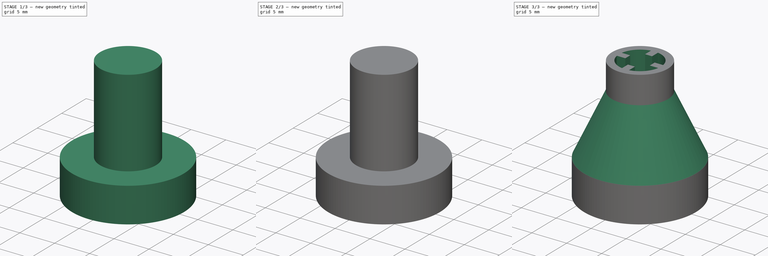
[diagram: build sequence overview — one tinted view per stage of 3, left to right]
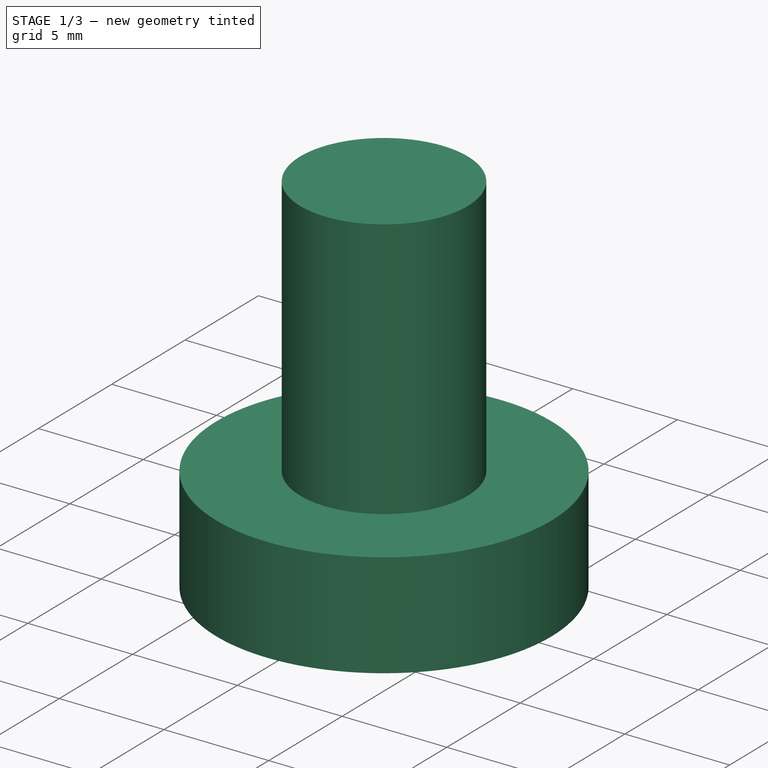
[diagram: stage 1 of 3 — iso view after this stage's code; geometry added in this stage tinted green]
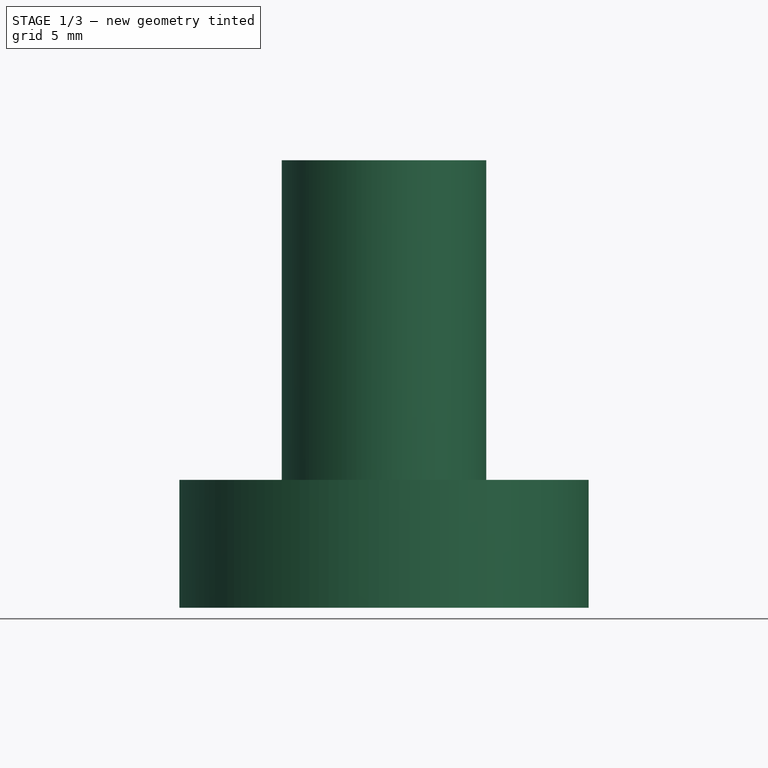
[diagram: stage 1 of 3 — front view after this stage's code; geometry added in this stage tinted green]
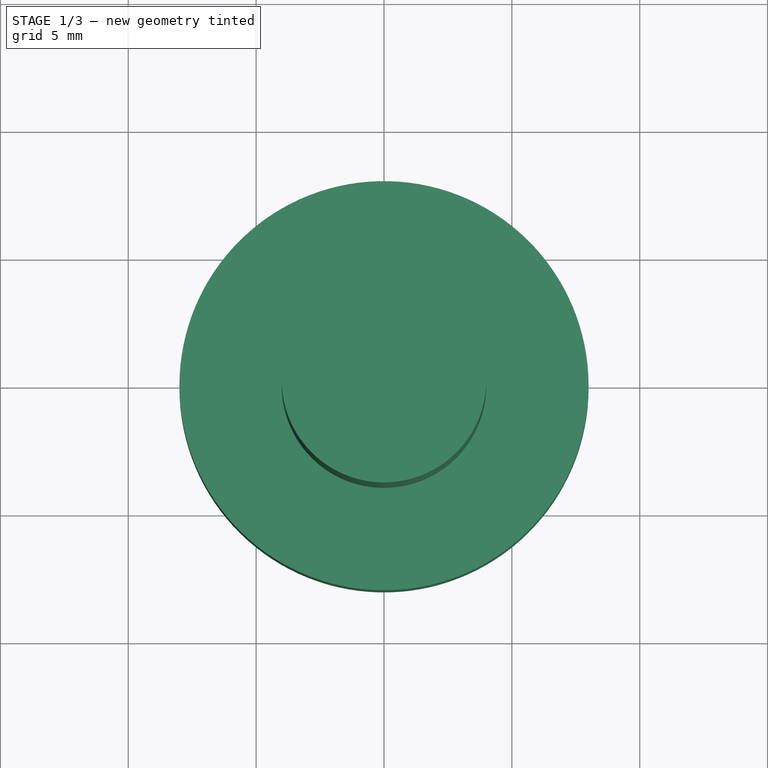
[diagram: stage 1 of 3 — top view after this stage's code; geometry added in this stage tinted green]
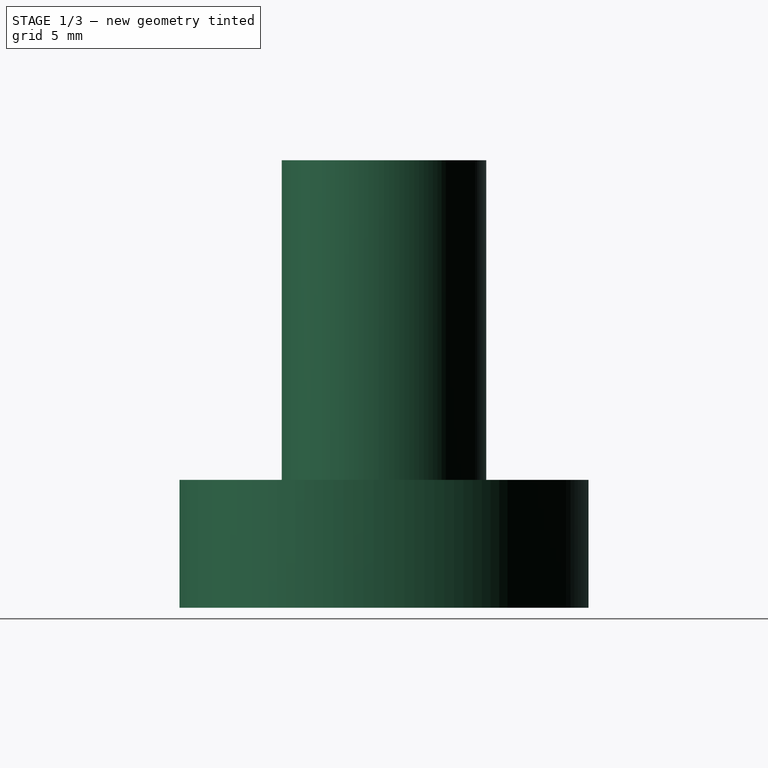
[diagram: stage 1 of 3 — right view after this stage's code; geometry added in this stage tinted green]
FCSTD DOCUMENT  (FreeCAD 0.20R29603 (Git))
Label: AnalyzerConnector
License: All rights reserved
LicenseURL: http://en.wikipedia.org/wiki/All_rights_reserved
objects: Sketcher::SketchObject×4, PartDesign::Pad×2, PartDesign::Pocket×2, PartDesign::Chamfer×1, PartDesign::Body×1
note: 15 computed .brp shape members not serialized (recipe doc carries the construction recipe); baked Part::Feature solids carry a one-line shape summary decoded from their .brp

FEATURE [Sketcher::SketchObject] Sketch005
  FullyConstrained = true
  MapMode = 5
  Support = -> [XY_Plane002]
  sketch-geometry (1):
    g0: Circle CenterX=0 CenterY=0 CenterZ=0 NormalX=0 NormalY=0 NormalZ=1 AngleXU=0 Radius=8
  constraints (2):
    c: Coincident(g0,g-1)
    c: Diameter(g0) = 16
FEATURE [PartDesign::Pad] Pad003
  Direction = (0,0,1)
  Length = 5
  Length2 = 10
  Profile = -> Sketch005
  ReferenceAxis = -> Sketch005 [N_Axis]
  Type = 0
FEATURE [Sketcher::SketchObject] Sketch006
  FullyConstrained = true
  MapMode = 5
  Placement = pos=(0,0,5) rot=(0,0,1;0rad)
  Support = -> [Pad003]
  sketch-geometry (1):
    g0: Circle CenterX=0 CenterY=0 CenterZ=0 NormalX=0 NormalY=0 NormalZ=1 AngleXU=0 Radius=4
  constraints (2):
    c: Coincident(g0,g-1)
    c: Diameter(g0) = 8
FEATURE [PartDesign::Pad] Pad004
  BaseFeature = -> Pad003
  Direction = (0,0,1)
  Length = 12.5
  Length2 = 10
  Profile = -> Sketch006
  ReferenceAxis = -> Sketch006 [N_Axis]
  Type = 0
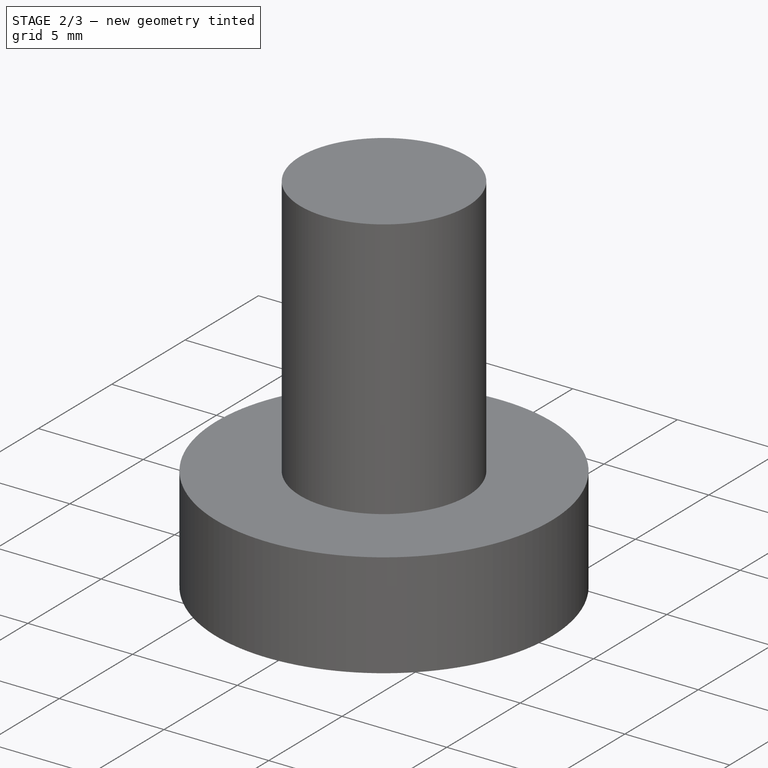
[diagram: stage 2 of 3 — iso view after this stage's code; geometry added in this stage tinted green]
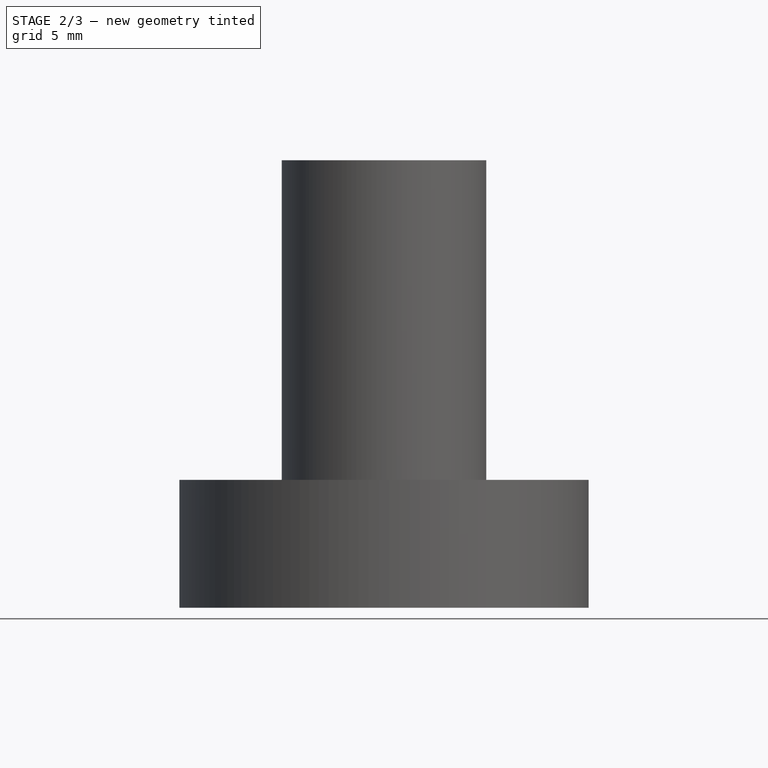
[diagram: stage 2 of 3 — front view after this stage's code; geometry added in this stage tinted green]
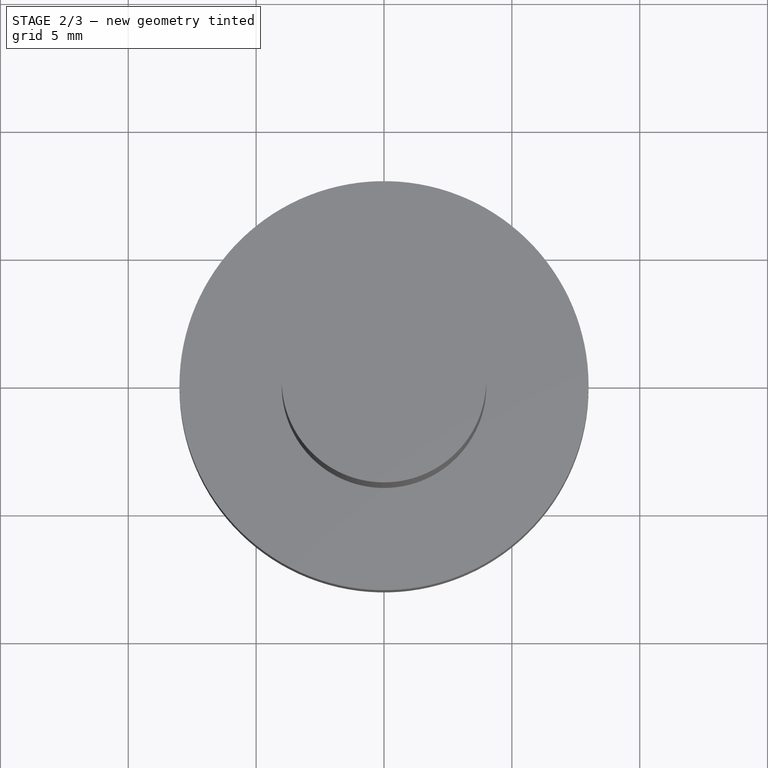
[diagram: stage 2 of 3 — top view after this stage's code; geometry added in this stage tinted green]
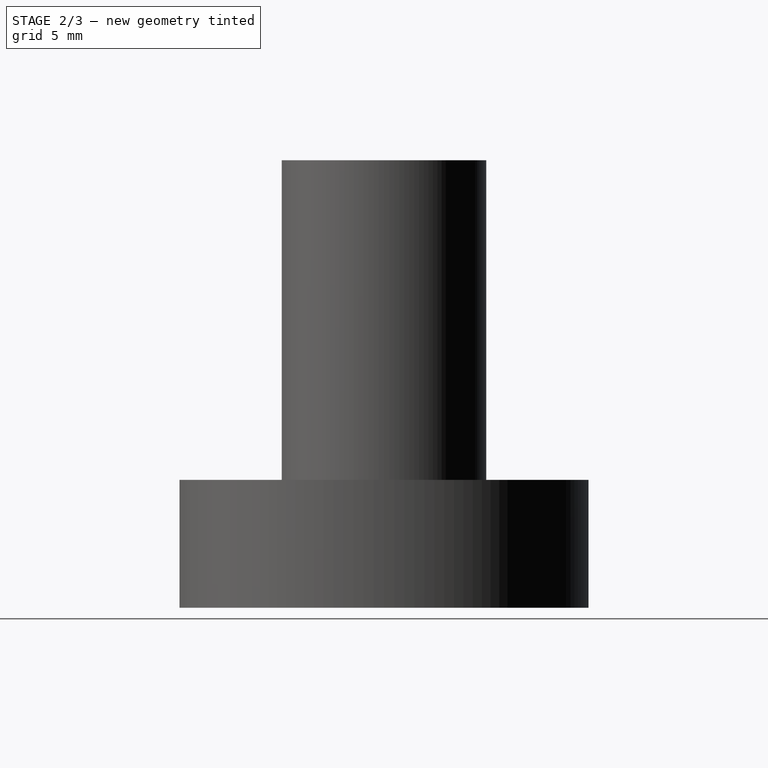
[diagram: stage 2 of 3 — right view after this stage's code; geometry added in this stage tinted green]
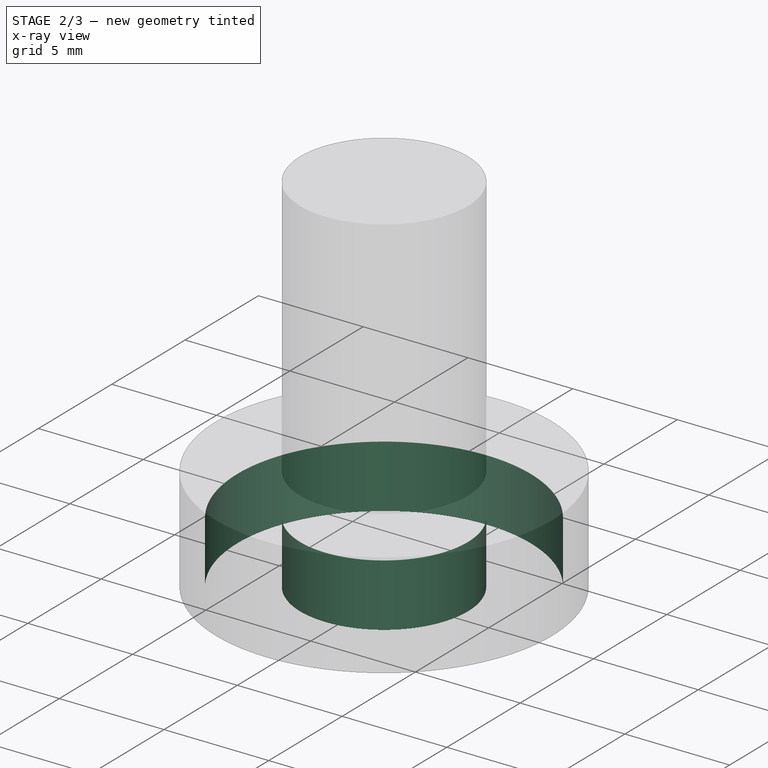
[diagram: stage 2 of 3 — x-ray composite at the iso view; earlier geometry ghosted, this stage's added geometry solid]
FEATURE [Sketcher::SketchObject] Sketch007
  FullyConstrained = true
  MapMode = 5
  Placement = pos=(0,0,17.5) rot=(0,0,1;0rad)
  Support = -> [Pad004]
  sketch-geometry (37):
    g0: Circle CenterX=0 CenterY=0 CenterZ=0 NormalX=0 NormalY=0 NormalZ=1 AngleXU=0 Radius=3
    g1: LineSegment StartX=-0.5 StartY=4.25 StartZ=0 EndX=-0.5 EndY=1.75 EndZ=0
    g2: LineSegment StartX=-0.5 StartY=1.75 StartZ=0 EndX=0.5 EndY=1.75 EndZ=0
    g3: LineSegment StartX=0.5 StartY=1.75 StartZ=0 EndX=0.5 EndY=4.25 EndZ=0
    g4: LineSegment StartX=0.5 StartY=4.25 StartZ=0 EndX=-0.5 EndY=4.25 EndZ=0
    g5: GeomPoint X=0 Y=3 Z=0
    g6: ArcOfCircle CenterX=0 CenterY=0 CenterZ=0 NormalX=0 NormalY=0 NormalZ=1 AngleXU=0 Radius=3 StartAngle=1.73824 EndAngle=2.97414
    g7: LineSegment StartX=0.5 StartY=2.95804 StartZ=0 EndX=0.5 EndY=1.75 EndZ=0
    g8: LineSegment StartX=0.5 StartY=1.75 StartZ=0 EndX=-0.5 EndY=1.75 EndZ=0
    g9: LineSegment StartX=-0.5 StartY=1.75 StartZ=0 EndX=-0.5 EndY=2.95804 EndZ=0
    g10: LineSegment StartX=1.75 StartY=0.5 StartZ=0 EndX=1.75 EndY=-0.5 EndZ=0
    g11: LineSegment StartX=1.75 StartY=-0.5 StartZ=0 EndX=4.25 EndY=-0.5 EndZ=0
    g12: LineSegment StartX=4.25 StartY=-0.5 StartZ=0 EndX=4.25 EndY=0.5 EndZ=0
    g13: LineSegment StartX=4.25 StartY=0.5 StartZ=0 EndX=1.75 EndY=0.5 EndZ=0
    g14: GeomPoint X=3 Y=0 Z=0
    g15: LineSegment StartX=-4.25 StartY=0.5 StartZ=0 EndX=-4.25 EndY=-0.5 EndZ=0
    g16: LineSegment StartX=-4.25 StartY=-0.5 StartZ=0 EndX=-1.75 EndY=-0.5 EndZ=0
    g17: LineSegment StartX=-1.75 StartY=-0.5 StartZ=0 EndX=-1.75 EndY=0.5 EndZ=0
    g18: LineSegment StartX=-1.75 StartY=0.5 StartZ=0 EndX=-4.25 EndY=0.5 EndZ=0
    g19: GeomPoint X=-3 Y=0 Z=0
    g20: LineSegment StartX=-0.5 StartY=-1.75 StartZ=0 EndX=-0.5 EndY=-4.25 EndZ=0
    g21: LineSegment StartX=-0.5 StartY=-4.25 StartZ=0 EndX=0.5 EndY=-4.25 EndZ=0
    g22: LineSegment StartX=0.5 StartY=-4.25 StartZ=0 EndX=0.5 EndY=-1.75 EndZ=0
    g23: LineSegment StartX=0.5 StartY=-1.75 StartZ=0 EndX=-0.5 EndY=-1.75 EndZ=0
    g24: GeomPoint X=0 Y=-3 Z=0
    g25: ArcOfCircle CenterX=0 CenterY=0 CenterZ=0 NormalX=0 NormalY=0 NormalZ=1 AngleXU=0 Radius=3 StartAngle=0.167448 EndAngle=1.40335
    g26: ArcOfCircle CenterX=0 CenterY=0 CenterZ=0 NormalX=0 NormalY=0 NormalZ=1 AngleXU=0 Radius=3 StartAngle=3.30904 EndAngle=4.54494
    g27: ArcOfCircle CenterX=0 CenterY=0 CenterZ=0 NormalX=0 NormalY=0 NormalZ=1 AngleXU=0 Radius=3 StartAngle=4.87984 EndAngle=6.11574
    g28: LineSegment StartX=-2.95804 StartY=0.5 StartZ=0 EndX=-1.75 EndY=0.5 EndZ=0
    g29: LineSegment StartX=-1.75 StartY=0.5 StartZ=0 EndX=-1.75 EndY=-0.5 EndZ=0
    g30: LineSegment StartX=-1.75 StartY=-0.5 StartZ=0 EndX=-2.95804 EndY=-0.5 EndZ=0
    g31: LineSegment StartX=-0.5 StartY=-2.95804 StartZ=0 EndX=-0.5 EndY=-1.75 EndZ=0
    g32: LineSegment StartX=-0.5 StartY=-1.75 StartZ=0 EndX=0.5 EndY=-1.75 EndZ=0
    g33: LineSegment StartX=0.5 StartY=-1.75 StartZ=0 EndX=0.5 EndY=-2.95804 EndZ=0
    g34: LineSegment StartX=2.95804 StartY=-0.5 StartZ=0 EndX=1.75 EndY=-0.5 EndZ=0
    g35: LineSegment StartX=1.75 StartY=-0.5 StartZ=0 EndX=1.75 EndY=0.5 EndZ=0
    g36: LineSegment StartX=1.75 StartY=0.5 StartZ=0 EndX=2.95804 EndY=0.5 EndZ=0
  constraints (94):
    c: Coincident(g0,g-1)
    c: Diameter(g0) = 6
    c: Coincident(g1,g2)
    c: Coincident(g2,g3)
    c: Coincident(g3,g4)
    c: Coincident(g4,g1)
    c: Horizontal(g2)
    c: Horizontal(g4)
    c: Vertical(g1)
    c: Vertical(g3)
    c: Symmetric(g2,g1,g5)
    c: PointOnObject(g5,g0)
    c: PointOnObject(g5,g-2)
    c: DistanceX(g4,g4) = 1
    c: DistanceY(g3,g3) = 2.5
    c: Coincident(g6,g0)
    c: Diameter(g6) = 6
    c: PointOnObject(g25,g3)
    c: PointOnObject(g6,g1)
    c: Coincident(g7,g25)
    c: Coincident(g8,g7)
    c: Coincident(g9,g8)
    c: Coincident(g9,g6)
    c: Coincident(g1,g8)
    c: Coincident(g7,g2)
    c: Coincident(g10,g11)
    c: Coincident(g11,g12)
    c: Coincident(g12,g13)
    c: Coincident(g13,g10)
    c: Horizontal(g11)
    c: Horizontal(g13)
    c: Vertical(g10)
    c: Vertical(g12)
    c: Symmetric(g11,g10,g14)
    c: PointOnObject(g14,g6)
    c: Coincident(g15,g16)
    c: Coincident(g16,g17)
    c: Coincident(g17,g18)
    c: Coincident(g18,g15)
    c: Horizontal(g16)
    c: Horizontal(g18)
    c: Vertical(g15)
    c: Vertical(g17)
    c: Symmetric(g16,g15,g19)
    c: PointOnObject(g19,g6)
    c: Coincident(g20,g21)
    c: Coincident(g21,g22)
    c: Coincident(g22,g23)
    c: Coincident(g23,g20)
    c: Horizontal(g21)
    c: Horizontal(g23)
    c: Vertical(g20)
    c: Vertical(g22)
    c: Symmetric(g21,g20,g24)
    c: PointOnObject(g24,g6)
    c: DistanceX(g23,g23) = 1
    c: DistanceY(g22,g22) = 2.5
    c: DistanceY(g12,g12) = 1
    c: DistanceX(g13,g13) = 2.5
    c: DistanceX(g16,g16) = 2.5
    c: DistanceY(g15,g15) = 1
    c: PointOnObject(g19,g-1)
    c: PointOnObject(g14,g-1)
    c: PointOnObject(g24,g-2)
    c: Equal(g6,g25)
    c: PointOnObject(g27,g11)
    c: Coincident(g6,g25)
    c: PointOnObject(g25,g13)
    c: Equal(g6,g26)
    c: PointOnObject(g6,g18)
    c: PointOnObject(g26,g16)
    c: Coincident(g6,g26)
    c: Equal(g26,g27)
    c: PointOnObject(g26,g20)
    c: PointOnObject(g27,g22)
    c: Coincident(g26,g27)
    c: Coincident(g28,g6)
    c: Coincident(g29,g28)
    c: Coincident(g30,g26)
    c: Coincident(g31,g26)
    c: Coincident(g33,g27)
    c: Coincident(g34,g27)
    c: Coincident(g29,g30)
    c: Coincident(g29,g16)
    c: Coincident(g28,g17)
    c: Coincident(g31,g32)
    c: Coincident(g32,g33)
    c: Coincident(g32,g22)
    c: Coincident(g31,g20)
    c: Coincident(g35,g36)
    c: Coincident(g34,g35)
    c: Coincident(g34,g10)
    c: Coincident(g35,g10)
    c: Coincident(g25,g36)
FEATURE [Sketcher::SketchObject] Sketch008
  FullyConstrained = true
  MapMode = 5
  Placement = pos=(0,0,0) rot=(1,0,0;3.14159rad)
  Support = -> [Pad004]
  sketch-geometry (2):
    g0: Circle CenterX=0 CenterY=0 CenterZ=0 NormalX=0 NormalY=0 NormalZ=1 AngleXU=0 Radius=7
    g1: Circle CenterX=0 CenterY=0 CenterZ=0 NormalX=0 NormalY=0 NormalZ=1 AngleXU=0 Radius=4
  constraints (4):
    c: Coincident(g0,g-1)
    c: Diameter(g0) = 14
    c: Coincident(g1,g0)
    c: Diameter(g1) = 8
FEATURE [PartDesign::Pocket] Pocket002
  BaseFeature = -> Pad004
  Direction = (0,0,1)
  Length = 3
  Length2 = 5
  Profile = -> Sketch008
  ReferenceAxis = -> Sketch008 [N_Axis]
  Type = 0
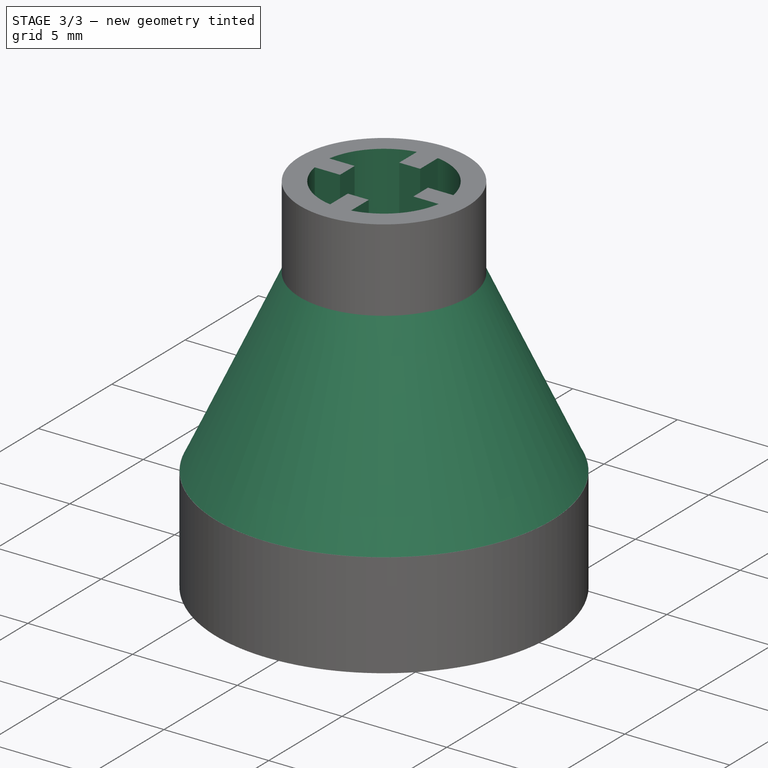
[diagram: stage 3 of 3 — iso view after this stage's code; geometry added in this stage tinted green]
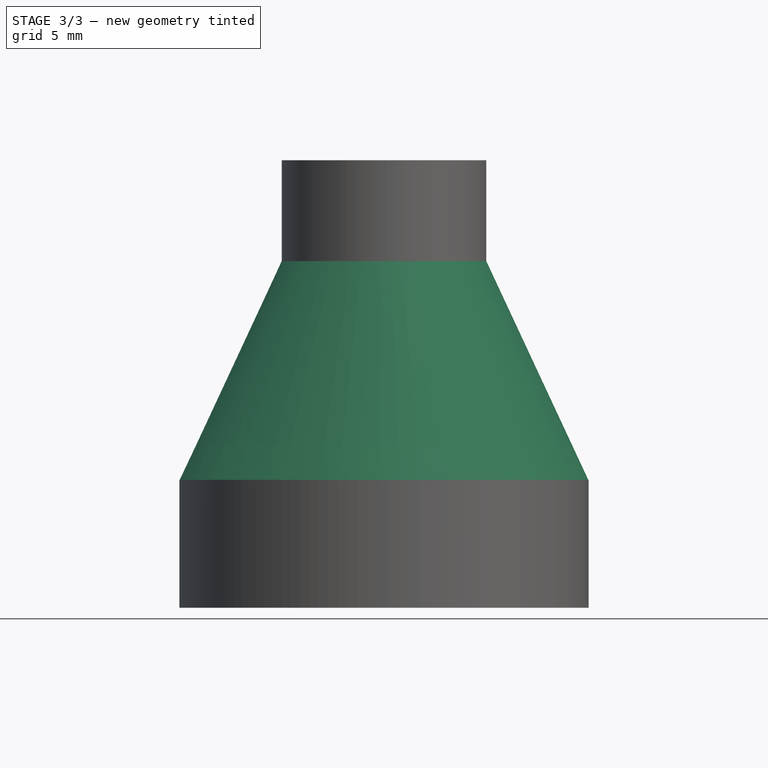
[diagram: stage 3 of 3 — front view after this stage's code; geometry added in this stage tinted green]
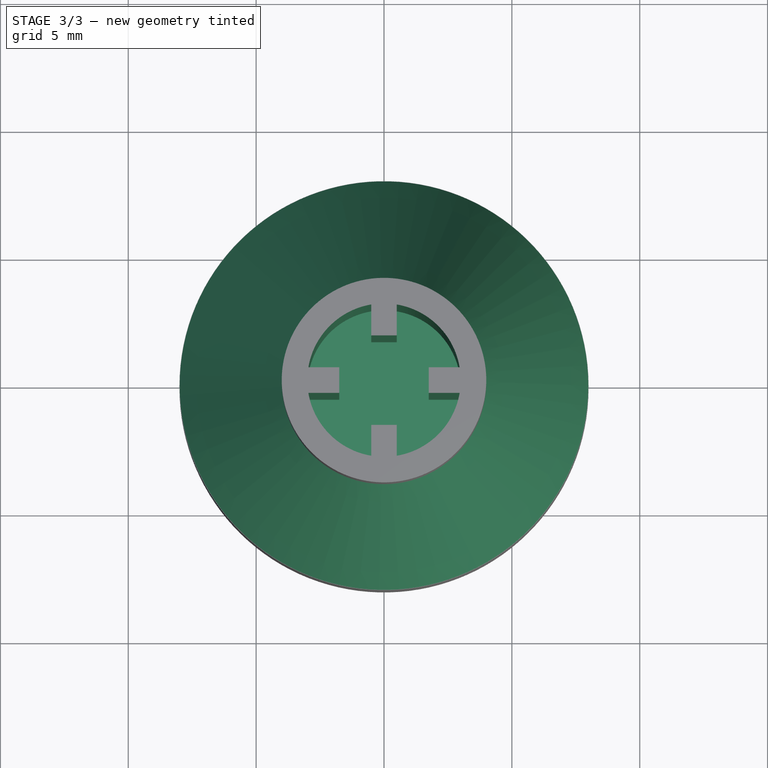
[diagram: stage 3 of 3 — top view after this stage's code; geometry added in this stage tinted green]
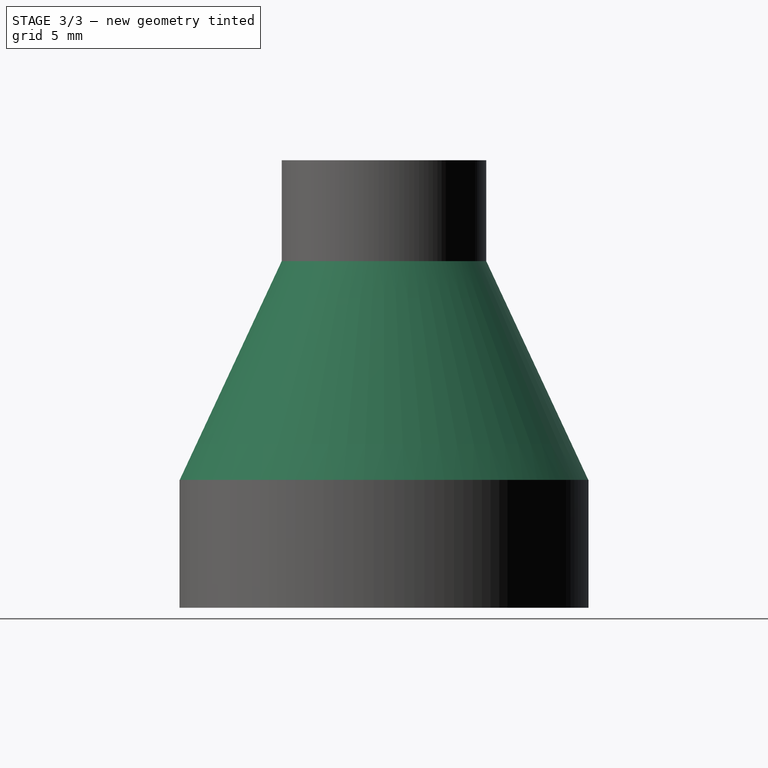
[diagram: stage 3 of 3 — right view after this stage's code; geometry added in this stage tinted green]
FEATURE [PartDesign::Pocket] Pocket003
  BaseFeature = -> Pocket002
  Direction = (0,0,-1)
  Length = 15.5
  Length2 = 5
  Profile = -> Sketch007
  ReferenceAxis = -> Sketch007 [N_Axis]
  Type = 0
FEATURE [PartDesign::Chamfer] Chamfer
  Angle = 65
  Base = -> Pocket003 [Edge5]
  BaseFeature = -> Pocket003
  ChamferType = 2
  FlipDirection = false
  Size = 3.99
  Size2 = 1
  SupportTransform = false
  UseAllEdges = false
FEATURE [PartDesign::Body] Body002
  Group = -> [Sketch005,Pad003,Sketch006,Pad004,Sketch007,Sketch008,Pocket002,Pocket003,Chamfer]
  Origin = -> Origin002
  Tip = -> Chamfer
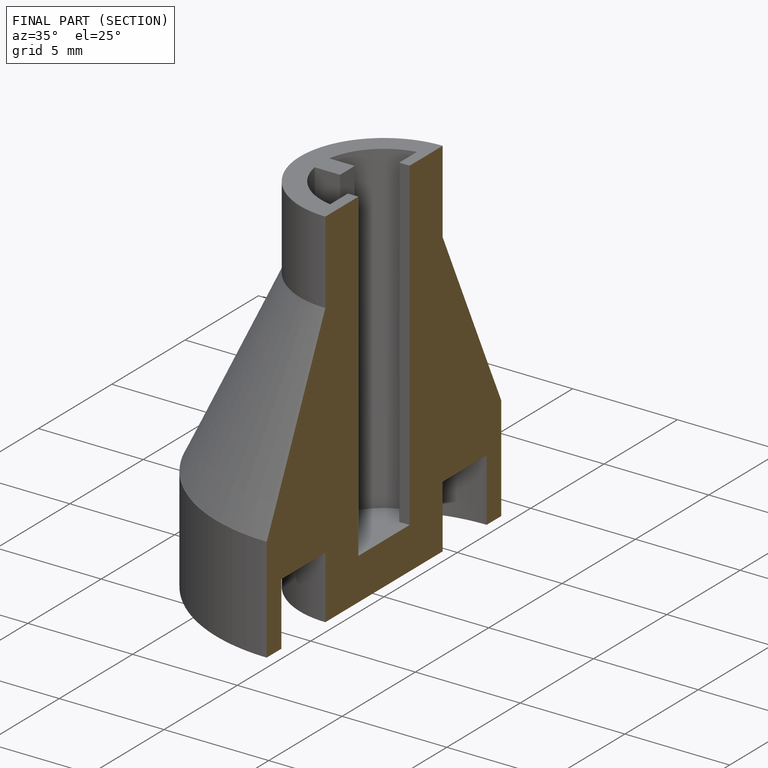
[diagram: finished part — half-section view (interior)]
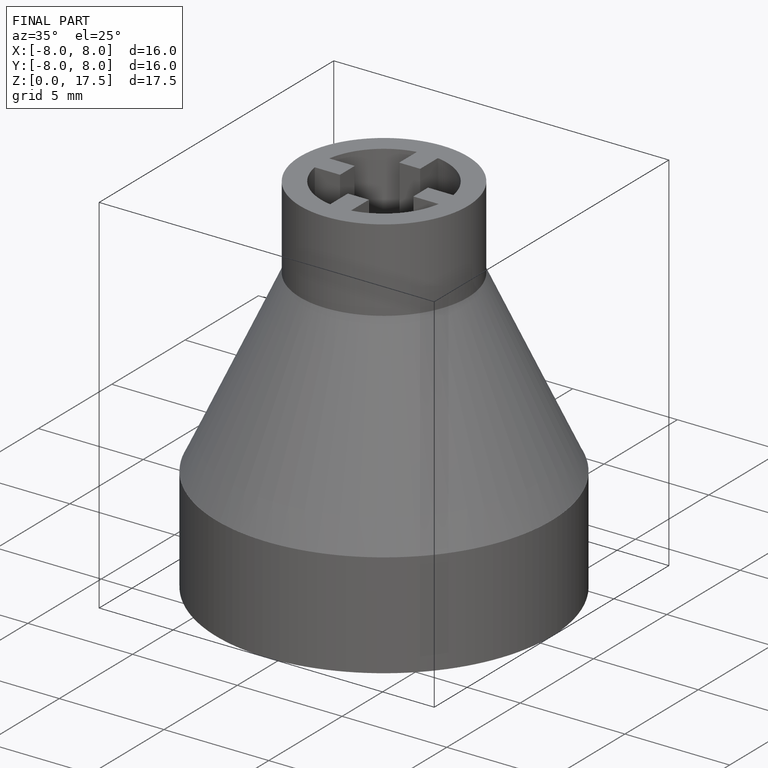
[diagram: finished part — iso view with bounding-box wireframe]
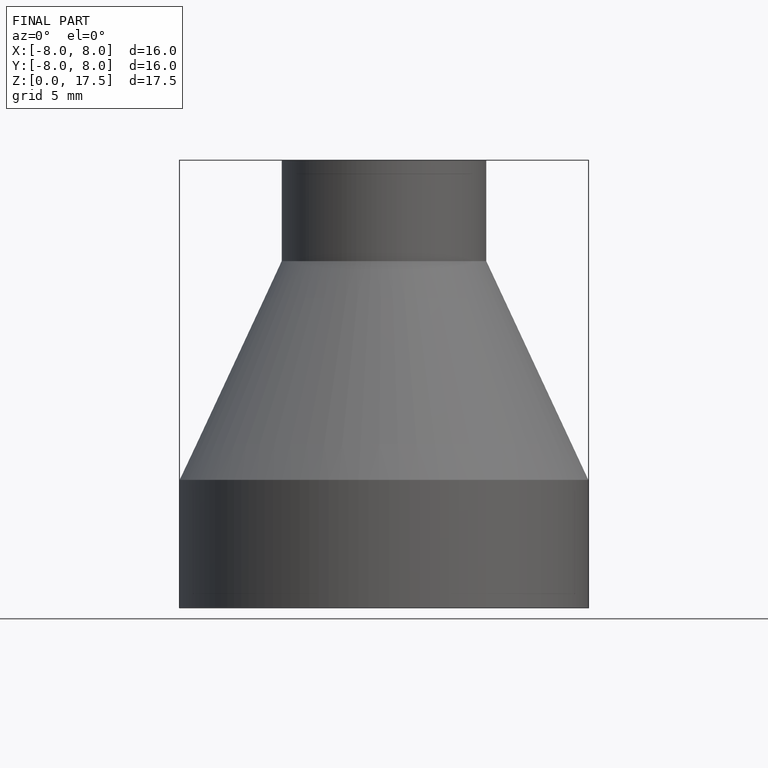
[diagram: finished part — front view with bounding-box wireframe]
